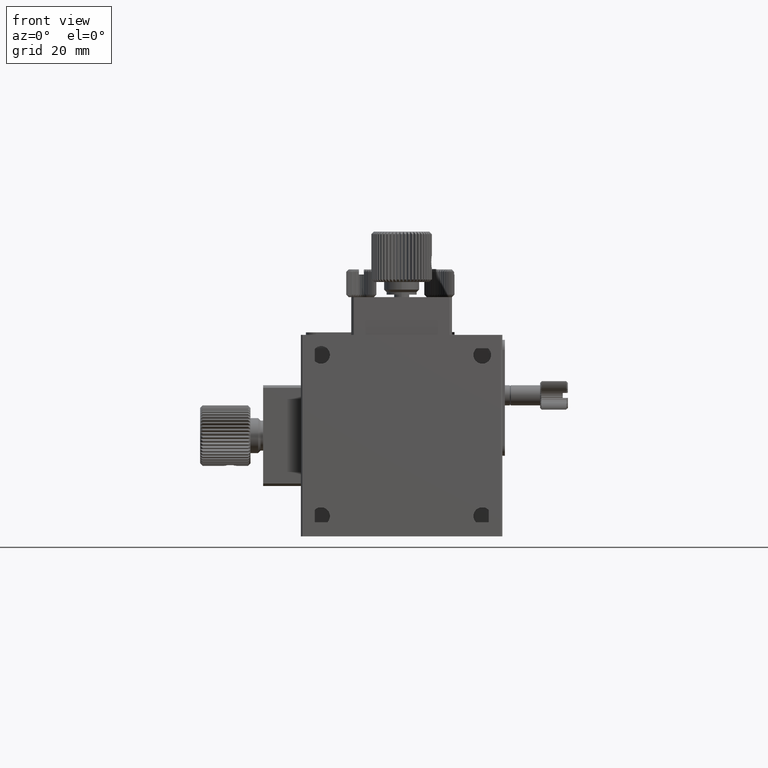
[diagram: clean part render]
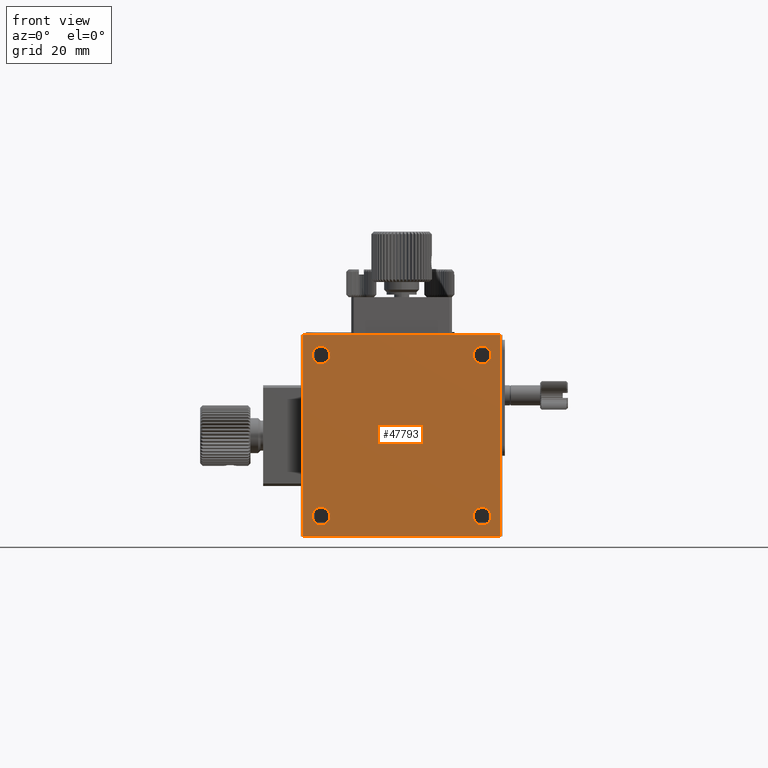
[diagram: same view with one face highlighted and labeled with its STEP entity id]
A machine part, front view. The second image highlights one B-rep face of the part: STEP entity #47793.
In plain terms, the highlighted planar face has unit normal (-0, 1, 0).
Its self-contained STEP definition (entity closure, byte-faithful):
#55 = EDGE_LOOP ( 'NONE', ( #41973, #32033, #35461, #38612 ) ) ;
#718 = EDGE_LOOP ( 'NONE', ( #32392 ) ) ;
#1176 = VERTEX_POINT ( 'NONE', #34573 ) ;
#1804 = DIRECTION ( 'NONE',  ( -1.000000000000000000, 0.000000000000000000, 0.000000000000000000 ) ) ;
#2094 = CARTESIAN_POINT ( 'NONE',  ( 36.00000000000000711, -30.00000000000000000, -36.00000000000000711 ) ) ;
#2139 = DIRECTION ( 'NONE',  ( 1.000000000000000000, 0.000000000000000000, 0.000000000000000000 ) ) ;
#2698 = DIRECTION ( 'NONE',  ( 0.000000000000000000, -1.000000000000000000, 0.000000000000000000 ) ) ;
#4239 = CARTESIAN_POINT ( 'NONE',  ( 3.999999999999996447, -30.00000000000000000, -36.00000000000000711 ) ) ;
#4931 = PLANE ( 'NONE',  #12644 ) ;
#5942 = CARTESIAN_POINT ( 'NONE',  ( 39.70000000000001705, -30.00000000000000000, -40.00000000000000000 ) ) ;
#6709 = LINE ( 'NONE', #43816, #49047 ) ;
#7763 = CARTESIAN_POINT ( 'NONE',  ( 2.249999999999996891, -30.00000000000000000, -4.000000000000000000 ) ) ;
#10425 = DIRECTION ( 'NONE',  ( -1.000000000000000000, 0.000000000000000000, 0.000000000000000000 ) ) ;
#11044 = CIRCLE ( 'NONE', #52730, 1.750000000000001554 ) ;
#12526 = CARTESIAN_POINT ( 'NONE',  ( 39.70000000000001705, -30.00000000000000000, -40.00000000000000000 ) ) ;
#12644 = AXIS2_PLACEMENT_3D ( 'NONE', #31686, #18929, #55993 ) ;
#13194 = VERTEX_POINT ( 'NONE', #57595 ) ;
#14570 = DIRECTION ( 'NONE',  ( 0.000000000000000000, -1.000000000000000000, 0.000000000000000000 ) ) ;
#14848 = CARTESIAN_POINT ( 'NONE',  ( 36.00000000000000711, -30.00000000000000000, -4.000000000000000000 ) ) ;
#14998 = CIRCLE ( 'NONE', #38329, 1.749999999999999778 ) ;
#15141 = EDGE_CURVE ( 'NONE', #28178, #29560, #6709, .T. ) ;
#18251 = DIRECTION ( 'NONE',  ( -1.000000000000000000, 0.000000000000000000, 0.000000000000000000 ) ) ;
#18929 = DIRECTION ( 'NONE',  ( -0.000000000000000000, 1.000000000000000000, 0.000000000000000000 ) ) ;
#19136 = DIRECTION ( 'NONE',  ( -1.000000000000000000, 0.000000000000000000, 0.000000000000000000 ) ) ;
#19945 = LINE ( 'NONE', #5942, #55146 ) ;
#22009 = DIRECTION ( 'NONE',  ( -1.000000000000000000, -0.000000000000000000, -0.000000000000000000 ) ) ;
#22652 = AXIS2_PLACEMENT_3D ( 'NONE', #14848, #33109, #19136 ) ;
#23785 = EDGE_CURVE ( 'NONE', #35417, #35417, #42546, .T. ) ;
#24709 = EDGE_CURVE ( 'NONE', #31715, #13194, #35387, .T. ) ;
#25872 = CARTESIAN_POINT ( 'NONE',  ( 0.2999999999999947153, -30.00000000000000000, -40.00000000000000000 ) ) ;
#27136 = FACE_BOUND ( 'NONE', #718, .T. ) ;
#27192 = EDGE_LOOP ( 'NONE', ( #56166 ) ) ;
#28047 = FACE_OUTER_BOUND ( 'NONE', #55, .T. ) ;
#28178 = VERTEX_POINT ( 'NONE', #42156 ) ;
#28620 = CARTESIAN_POINT ( 'NONE',  ( 34.25000000000000000, -30.00000000000000000, -36.00000000000000711 ) ) ;
#29243 = CARTESIAN_POINT ( 'NONE',  ( 3.999999999999996447, -30.00000000000000000, -4.000000000000000000 ) ) ;
#29560 = VERTEX_POINT ( 'NONE', #48254 ) ;
#30126 = VECTOR ( 'NONE', #22009, 1000.000000000000000 ) ;
#30894 = AXIS2_PLACEMENT_3D ( 'NONE', #29243, #57795, #10425 ) ;
#31686 = CARTESIAN_POINT ( 'NONE',  ( 39.70000000000001705, -30.00000000000000000, -40.00000000000000000 ) ) ;
#31715 = VERTEX_POINT ( 'NONE', #12526 ) ;
#31909 = CARTESIAN_POINT ( 'NONE',  ( 34.25000000000000000, -30.00000000000000000, -4.000000000000000000 ) ) ;
#32033 = ORIENTED_EDGE ( 'NONE', *, *, #24709, .F. ) ;
#32392 = ORIENTED_EDGE ( 'NONE', *, *, #40622, .F. ) ;
#33109 = DIRECTION ( 'NONE',  ( 0.000000000000000000, -1.000000000000000000, 0.000000000000000000 ) ) ;
#34573 = CARTESIAN_POINT ( 'NONE',  ( 2.249999999999996891, -30.00000000000000000, -36.00000000000000711 ) ) ;
#34700 = ORIENTED_EDGE ( 'NONE', *, *, #54751, .F. ) ;
#35387 = LINE ( 'NONE', #59385, #30126 ) ;
#35417 = VERTEX_POINT ( 'NONE', #7763 ) ;
#35461 = ORIENTED_EDGE ( 'NONE', *, *, #45842, .F. ) ;
#35703 = VECTOR ( 'NONE', #44134, 1000.000000000000000 ) ;
#35986 = EDGE_LOOP ( 'NONE', ( #46711 ) ) ;
#36051 = EDGE_LOOP ( 'NONE', ( #34700 ) ) ;
#37487 = FACE_BOUND ( 'NONE', #35986, .T. ) ;
#38329 = AXIS2_PLACEMENT_3D ( 'NONE', #4239, #14570, #18251 ) ;
#38612 = ORIENTED_EDGE ( 'NONE', *, *, #15141, .F. ) ;
#39874 = LINE ( 'NONE', #25872, #35703 ) ;
#40622 = EDGE_CURVE ( 'NONE', #51716, #51716, #11044, .T. ) ;
#41099 = CIRCLE ( 'NONE', #22652, 1.750000000000001554 ) ;
#41973 = ORIENTED_EDGE ( 'NONE', *, *, #44096, .F. ) ;
#42156 = CARTESIAN_POINT ( 'NONE',  ( 0.3000000000000016542, -30.00000000000000000, 0.000000000000000000 ) ) ;
#42546 = CIRCLE ( 'NONE', #30894, 1.749999999999999778 ) ;
#43816 = CARTESIAN_POINT ( 'NONE',  ( 39.70000000000001705, -30.00000000000000000, 0.000000000000000000 ) ) ;
#44096 = EDGE_CURVE ( 'NONE', #13194, #28178, #39874, .T. ) ;
#44134 = DIRECTION ( 'NONE',  ( -0.000000000000000000, -0.000000000000000000, 1.000000000000000000 ) ) ;
#45842 = EDGE_CURVE ( 'NONE', #29560, #31715, #19945, .T. ) ;
#46610 = FACE_BOUND ( 'NONE', #27192, .T. ) ;
#46711 = ORIENTED_EDGE ( 'NONE', *, *, #23785, .F. ) ;
#47793 = ADVANCED_FACE ( 'NONE', ( #28047, #46610, #37487, #59962, #27136 ), #4931, .F. ) ;
#48254 = CARTESIAN_POINT ( 'NONE',  ( 39.70000000000001705, -30.00000000000000000, 0.000000000000000000 ) ) ;
#49047 = VECTOR ( 'NONE', #2139, 1000.000000000000000 ) ;
#50440 = VERTEX_POINT ( 'NONE', #31909 ) ;
#50741 = EDGE_CURVE ( 'NONE', #50440, #50440, #41099, .T. ) ;
#51716 = VERTEX_POINT ( 'NONE', #28620 ) ;
#52730 = AXIS2_PLACEMENT_3D ( 'NONE', #2094, #2698, #1804 ) ;
#52738 = DIRECTION ( 'NONE',  ( 0.000000000000000000, 0.000000000000000000, -1.000000000000000000 ) ) ;
#54751 = EDGE_CURVE ( 'NONE', #1176, #1176, #14998, .T. ) ;
#55146 = VECTOR ( 'NONE', #52738, 1000.000000000000000 ) ;
#55993 = DIRECTION ( 'NONE',  ( 1.000000000000000000, 0.000000000000000000, 0.000000000000000000 ) ) ;
#56166 = ORIENTED_EDGE ( 'NONE', *, *, #50741, .F. ) ;
#57595 = CARTESIAN_POINT ( 'NONE',  ( 0.3000000000000016542, -30.00000000000000000, -40.00000000000000000 ) ) ;
#57795 = DIRECTION ( 'NONE',  ( 0.000000000000000000, -1.000000000000000000, 0.000000000000000000 ) ) ;
#59385 = CARTESIAN_POINT ( 'NONE',  ( 39.70000000000001705, -30.00000000000000000, -40.00000000000000000 ) ) ;
#59962 = FACE_BOUND ( 'NONE', #36051, .T. ) ;